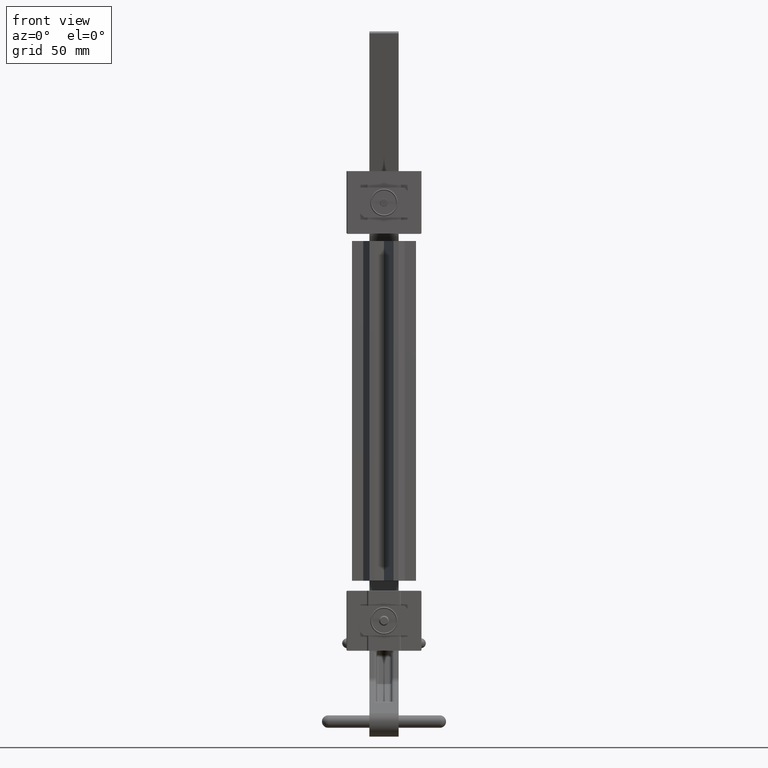
[diagram: clean part render]
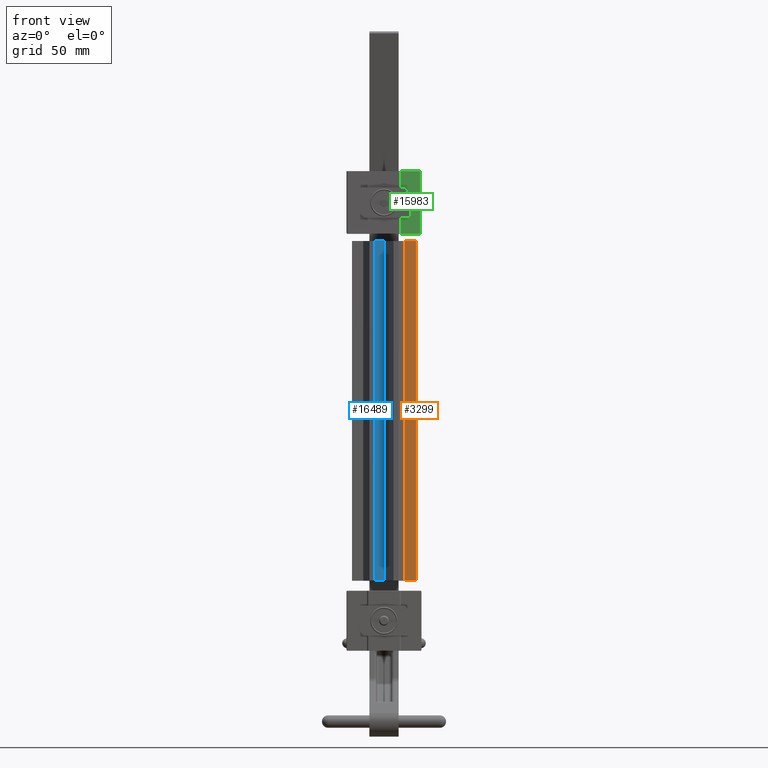
[diagram: same view with three faces highlighted in distinct colors, each labeled with its STEP entity id]
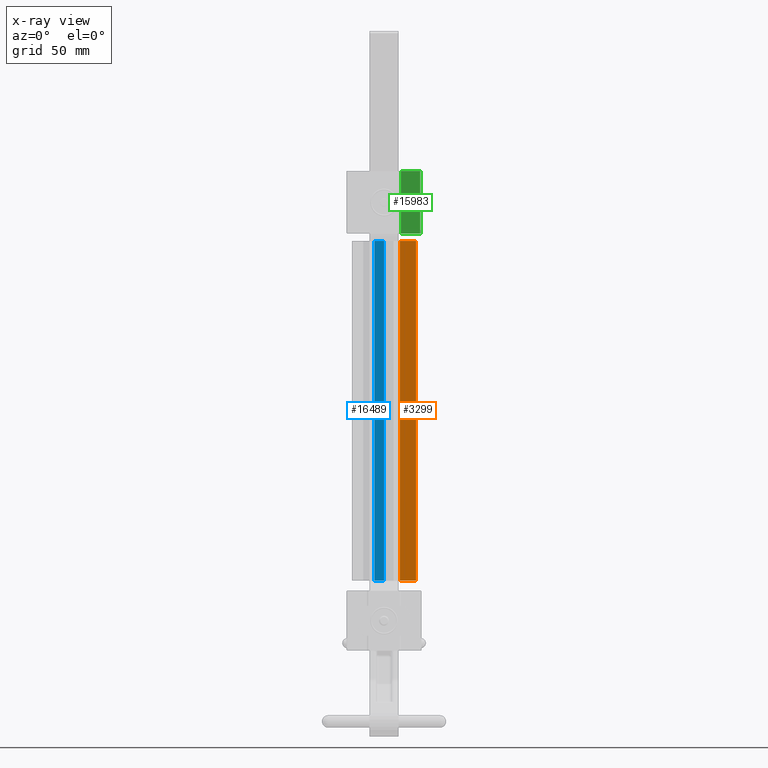
[diagram: x-ray of the same camera — body ghosted, the three highlighted faces saturated]
A machine part, front view with three faces highlighted in distinct colors.
The next image is the same camera in x-ray (body ghosted, the three faces saturated) — at least one of them is partly hidden behind the body in this view.
Their STEP definitions:

[orange] entity #3299 — the highlighted planar face has unit normal (-0, 1, 0).
#2676 = EDGE_LOOP ( 'NONE', ( #10081, #24916, #3896, #14109 ) ) ;
#3077 = VECTOR ( 'NONE', #7395, 39.37007874015748100 ) ;
#3299 = ADVANCED_FACE ( 'NONE', ( #5155 ), #12192, .F. ) ;
#3896 = ORIENTED_EDGE ( 'NONE', *, *, #24973, .F. ) ;
#4270 = DIRECTION ( 'NONE',  ( 1.000000000000000000, 8.410862049458938700E-017, -0.0000000000000000000 ) ) ;
#4310 = EDGE_CURVE ( 'NONE', #8626, #26048, #17693, .T. ) ;
#5155 = FACE_OUTER_BOUND ( 'NONE', #2676, .T. ) ;
#5298 = VERTEX_POINT ( 'NONE', #32513 ) ;
#5826 = LINE ( 'NONE', #25027, #18846 ) ;
#5896 = CARTESIAN_POINT ( 'NONE',  ( 0.8000000000000000400, -0.1880000000000000300, 4.250000000000000000 ) ) ;
#7076 = DIRECTION ( 'NONE',  ( -1.000000000000000000, -8.410862049458938700E-017, 0.0000000000000000000 ) ) ;
#7395 = DIRECTION ( 'NONE',  ( -0.0000000000000000000, -0.0000000000000000000, -1.000000000000000000 ) ) ;
#8524 = DIRECTION ( 'NONE',  ( 1.000000000000000000, 8.410862049458938700E-017, -0.0000000000000000000 ) ) ;
#8626 = VERTEX_POINT ( 'NONE', #28427 ) ;
#10081 = ORIENTED_EDGE ( 'NONE', *, *, #27095, .T. ) ;
#11326 = VECTOR ( 'NONE', #33234, 39.37007874015748100 ) ;
#12192 = PLANE ( 'NONE',  #28043 ) ;
#12548 = CARTESIAN_POINT ( 'NONE',  ( 0.3940000000000000700, -0.1880000000000001400, 4.250000000000000000 ) ) ;
#14109 = ORIENTED_EDGE ( 'NONE', *, *, #31076, .T. ) ;
#16613 = LINE ( 'NONE', #12548, #11326 ) ;
#17429 = CARTESIAN_POINT ( 'NONE',  ( 0.8000000000000000400, -0.1880000000000000300, 4.250000000000000000 ) ) ;
#17693 = LINE ( 'NONE', #25525, #3077 ) ;
#18846 = VECTOR ( 'NONE', #4270, 39.37007874015748100 ) ;
#19067 = VECTOR ( 'NONE', #8524, 39.37007874015748100 ) ;
#22636 = DIRECTION ( 'NONE',  ( -8.410862049458938700E-017, 1.000000000000000000, 0.0000000000000000000 ) ) ;
#23345 = VERTEX_POINT ( 'NONE', #28053 ) ;
#24916 = ORIENTED_EDGE ( 'NONE', *, *, #4310, .F. ) ;
#24973 = EDGE_CURVE ( 'NONE', #5298, #8626, #32786, .T. ) ;
#25027 = CARTESIAN_POINT ( 'NONE',  ( 0.8000000000000000400, -0.1880000000000000300, -4.250000000000000000 ) ) ;
#25525 = CARTESIAN_POINT ( 'NONE',  ( 0.8000000000000000400, -0.1880000000000000300, 4.250000000000000000 ) ) ;
#26048 = VERTEX_POINT ( 'NONE', #27011 ) ;
#27011 = CARTESIAN_POINT ( 'NONE',  ( 0.8000000000000000400, -0.1880000000000000300, -4.250000000000000000 ) ) ;
#27095 = EDGE_CURVE ( 'NONE', #23345, #26048, #5826, .T. ) ;
#28043 = AXIS2_PLACEMENT_3D ( 'NONE', #17429, #22636, #7076 ) ;
#28053 = CARTESIAN_POINT ( 'NONE',  ( 0.3940000000000000700, -0.1880000000000001400, -4.250000000000000000 ) ) ;
#28427 = CARTESIAN_POINT ( 'NONE',  ( 0.8000000000000000400, -0.1880000000000000300, 4.250000000000000000 ) ) ;
#31076 = EDGE_CURVE ( 'NONE', #5298, #23345, #16613, .T. ) ;
#32513 = CARTESIAN_POINT ( 'NONE',  ( 0.3940000000000000700, -0.1880000000000001400, 4.250000000000000000 ) ) ;
#32786 = LINE ( 'NONE', #5896, #19067 ) ;
#33234 = DIRECTION ( 'NONE',  ( -0.0000000000000000000, -0.0000000000000000000, -1.000000000000000000 ) ) ;

[blue] entity #16489 — the highlighted planar face has unit normal (0.9344, -0.3561, 0).
#80 = EDGE_CURVE ( 'NONE', #28855, #24142, #9259, .T. ) ;
#513 = CARTESIAN_POINT ( 'NONE',  ( -0.2380000000000001300, -0.8125000000000000000, -4.250000000000000000 ) ) ;
#2132 = LINE ( 'NONE', #30280, #30488 ) ;
#4364 = EDGE_CURVE ( 'NONE', #31354, #24198, #28995, .T. ) ;
#6526 = CARTESIAN_POINT ( 'NONE',  ( -0.2380000000000001300, -0.8125000000000000000, -4.250000000000000000 ) ) ;
#6738 = CARTESIAN_POINT ( 'NONE',  ( 4.370956789862821100E-015, -0.1880000000000018000, 4.250000000000000000 ) ) ;
#7271 = LINE ( 'NONE', #28478, #14991 ) ;
#8450 = VECTOR ( 'NONE', #31693, 39.37007874015748900 ) ;
#9259 = LINE ( 'NONE', #513, #8450 ) ;
#9465 = CARTESIAN_POINT ( 'NONE',  ( -0.2380000000000001300, -0.8125000000000000000, 4.250000000000000000 ) ) ;
#10079 = EDGE_CURVE ( 'NONE', #31354, #28855, #2132, .T. ) ;
#10132 = DIRECTION ( 'NONE',  ( -0.3561197693169032000, -0.9344403190689469800, 0.0000000000000000000 ) ) ;
#11693 = ORIENTED_EDGE ( 'NONE', *, *, #10079, .F. ) ;
#12755 = DIRECTION ( 'NONE',  ( 0.3561197693169032000, 0.9344403190689469800, 0.0000000000000000000 ) ) ;
#12984 = DIRECTION ( 'NONE',  ( -0.0000000000000000000, -0.0000000000000000000, -1.000000000000000000 ) ) ;
#14991 = VECTOR ( 'NONE', #12984, 39.37007874015748100 ) ;
#15060 = CARTESIAN_POINT ( 'NONE',  ( -0.2380000000000001300, -0.8125000000000000000, 4.250000000000000000 ) ) ;
#15557 = ORIENTED_EDGE ( 'NONE', *, *, #25801, .T. ) ;
#16489 = ADVANCED_FACE ( 'NONE', ( #16863 ), #20464, .T. ) ;
#16863 = FACE_OUTER_BOUND ( 'NONE', #23265, .T. ) ;
#17426 = DIRECTION ( 'NONE',  ( -0.0000000000000000000, -0.0000000000000000000, -1.000000000000000000 ) ) ;
#20464 = PLANE ( 'NONE',  #32431 ) ;
#22136 = VECTOR ( 'NONE', #10132, 39.37007874015748900 ) ;
#23265 = EDGE_LOOP ( 'NONE', ( #30755, #11693, #28183, #15557 ) ) ;
#24142 = VERTEX_POINT ( 'NONE', #6526 ) ;
#24198 = VERTEX_POINT ( 'NONE', #9465 ) ;
#24209 = CARTESIAN_POINT ( 'NONE',  ( 4.370956789862821100E-015, -0.1880000000000018000, -4.250000000000000000 ) ) ;
#25801 = EDGE_CURVE ( 'NONE', #24198, #24142, #7271, .T. ) ;
#28183 = ORIENTED_EDGE ( 'NONE', *, *, #4364, .T. ) ;
#28230 = CARTESIAN_POINT ( 'NONE',  ( -0.2380000000000001300, -0.8125000000000000000, 4.250000000000000000 ) ) ;
#28274 = DIRECTION ( 'NONE',  ( 0.9344403190689470900, -0.3561197693169032600, 0.0000000000000000000 ) ) ;
#28478 = CARTESIAN_POINT ( 'NONE',  ( -0.2380000000000001300, -0.8125000000000000000, 4.250000000000000000 ) ) ;
#28855 = VERTEX_POINT ( 'NONE', #24209 ) ;
#28995 = LINE ( 'NONE', #28230, #22136 ) ;
#30280 = CARTESIAN_POINT ( 'NONE',  ( 4.370956789862821100E-015, -0.1880000000000018000, 4.250000000000000000 ) ) ;
#30488 = VECTOR ( 'NONE', #17426, 39.37007874015748100 ) ;
#30755 = ORIENTED_EDGE ( 'NONE', *, *, #80, .F. ) ;
#31354 = VERTEX_POINT ( 'NONE', #6738 ) ;
#31693 = DIRECTION ( 'NONE',  ( -0.3561197693169032000, -0.9344403190689469800, 0.0000000000000000000 ) ) ;
#32431 = AXIS2_PLACEMENT_3D ( 'NONE', #15060, #28274, #12755 ) ;

[green] entity #15983 — the highlighted planar face has unit normal (0, 1, 0).
#275 = CARTESIAN_POINT ( 'NONE',  ( -0.7860000000000002500, 0.1780000000000004100, -0.9062500000000001100 ) ) ;
#595 = VERTEX_POINT ( 'NONE', #21306 ) ;
#942 = CARTESIAN_POINT ( 'NONE',  ( -0.7860000000000002500, 0.1780000000000004100, -0.9062500000000001100 ) ) ;
#2136 = LINE ( 'NONE', #14272, #21198 ) ;
#2365 = DIRECTION ( 'NONE',  ( 2.431098930611424400E-016, 1.000000000000000000, -1.073766191217320400E-016 ) ) ;
#2575 = EDGE_CURVE ( 'NONE', #595, #25975, #22243, .T. ) ;
#4788 = DIRECTION ( 'NONE',  ( 1.000000000000000000, -2.431098930611424400E-016, 1.942890293094023700E-016 ) ) ;
#5449 = VERTEX_POINT ( 'NONE', #28365 ) ;
#5849 = EDGE_LOOP ( 'NONE', ( #11150, #15417, #30709, #26774 ) ) ;
#7996 = DIRECTION ( 'NONE',  ( 1.000000000000000000, -2.431098930611424400E-016, 1.942890293094023700E-016 ) ) ;
#8045 = CARTESIAN_POINT ( 'NONE',  ( 0.7859999999999998100, 0.1780000000000001300, -0.9374999999999997800 ) ) ;
#9222 = LINE ( 'NONE', #10023, #14499 ) ;
#10023 = CARTESIAN_POINT ( 'NONE',  ( -0.7860000000000002500, 0.1780000000000004100, -0.4200000000000002100 ) ) ;
#11150 = ORIENTED_EDGE ( 'NONE', *, *, #22815, .F. ) ;
#14272 = CARTESIAN_POINT ( 'NONE',  ( -0.7860000000000002500, 0.1780000000000004100, -0.9375000000000000000 ) ) ;
#14499 = VECTOR ( 'NONE', #4788, 39.37007874015748100 ) ;
#14534 = VECTOR ( 'NONE', #31221, 39.37007874015748100 ) ;
#15417 = ORIENTED_EDGE ( 'NONE', *, *, #18088, .T. ) ;
#15983 = ADVANCED_FACE ( 'NONE', ( #21339 ), #30767, .F. ) ;
#16373 = LINE ( 'NONE', #275, #22454 ) ;
#16699 = VERTEX_POINT ( 'NONE', #942 ) ;
#17530 = AXIS2_PLACEMENT_3D ( 'NONE', #33342, #2365, #20499 ) ;
#18088 = EDGE_CURVE ( 'NONE', #16699, #595, #16373, .T. ) ;
#18470 = EDGE_CURVE ( 'NONE', #5449, #25975, #9222, .T. ) ;
#20499 = DIRECTION ( 'NONE',  ( -1.000000000000000000, 2.431098930611424400E-016, -1.942890293094023700E-016 ) ) ;
#21198 = VECTOR ( 'NONE', #32348, 39.37007874015748100 ) ;
#21306 = CARTESIAN_POINT ( 'NONE',  ( 0.7859999999999998100, 0.1780000000000001300, -0.9062499999999997800 ) ) ;
#21339 = FACE_OUTER_BOUND ( 'NONE', #5849, .T. ) ;
#22243 = LINE ( 'NONE', #8045, #14534 ) ;
#22454 = VECTOR ( 'NONE', #7996, 39.37007874015748100 ) ;
#22815 = EDGE_CURVE ( 'NONE', #16699, #5449, #2136, .T. ) ;
#25975 = VERTEX_POINT ( 'NONE', #27008 ) ;
#26774 = ORIENTED_EDGE ( 'NONE', *, *, #18470, .F. ) ;
#27008 = CARTESIAN_POINT ( 'NONE',  ( 0.7859999999999998100, 0.1779999999999999900, -0.4199999999999999800 ) ) ;
#28365 = CARTESIAN_POINT ( 'NONE',  ( -0.7860000000000002500, 0.1780000000000004100, -0.4200000000000002100 ) ) ;
#30709 = ORIENTED_EDGE ( 'NONE', *, *, #2575, .T. ) ;
#30767 = PLANE ( 'NONE',  #17530 ) ;
#31221 = DIRECTION ( 'NONE',  ( 1.942890293094023700E-016, -1.073766191217321000E-016, 1.000000000000000000 ) ) ;
#32348 = DIRECTION ( 'NONE',  ( 1.942890293094023700E-016, -1.073766191217321000E-016, 1.000000000000000000 ) ) ;
#33342 = CARTESIAN_POINT ( 'NONE',  ( -0.7860000000000002500, 0.1780000000000004100, -0.9375000000000000000 ) ) ;